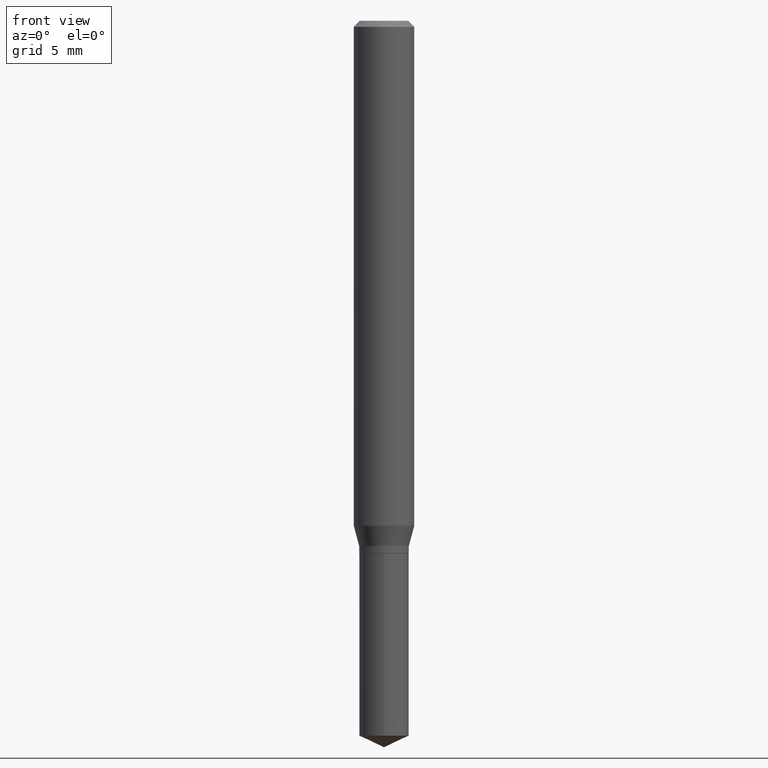
[diagram: clean part render]
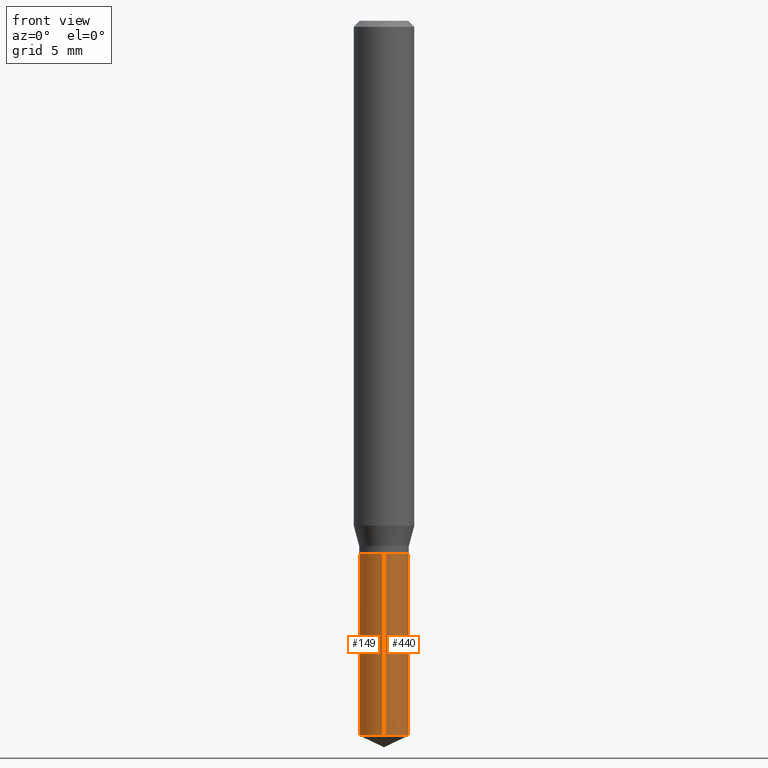
[diagram: same view with one multi-face feature highlighted, each face labeled with its STEP entity id]
A machine part, front view. The highlighted faces form ONE feature: a constant-radius fillet chain: 2 tangent blend faces with common blend radius 1.3005 mm. The faces share edges in the B-rep.
Their STEP definitions:
[1] entity #149 (Cylinder):
#8 = ORIENTED_EDGE ( 'NONE', *, *, #76, .T. ) ;
#33 = DIRECTION ( 'NONE',  ( -2.445399690415121530E-29, 3.491580316559632610E-15, 1.000000000000000000 ) ) ;
#56 = DIRECTION ( 'NONE',  ( -2.445399690415121810E-29, 3.491580316559632610E-15, 1.000000000000000000 ) ) ;
#61 = FACE_OUTER_BOUND ( 'NONE', #389, .T. ) ;
#69 = CARTESIAN_POINT ( 'NONE',  ( -3.575276890975008567E-16, -0.05120000000000517887, -1.476125047902464127 ) ) ;
#76 = EDGE_CURVE ( 'NONE', #122, #457, #467, .T. ) ;
#84 = VERTEX_POINT ( 'NONE', #277 ) ;
#102 = CARTESIAN_POINT ( 'NONE',  ( 3.609791762501709224E-29, -5.153900286548753594E-15, -1.476125047902464349 ) ) ;
#117 = AXIS2_PLACEMENT_3D ( 'NONE', #102, #354, #395 ) ;
#122 = VERTEX_POINT ( 'NONE', #69 ) ;
#125 = CARTESIAN_POINT ( 'NONE',  ( 2.690015686803650369E-29, -3.840629472727460101E-15, -1.100000000000000089 ) ) ;
#129 = CARTESIAN_POINT ( 'NONE',  ( 3.637978807092075016E-16, 0.05119999999999486073, -1.476125047902464571 ) ) ;
#147 = CIRCLE ( 'NONE', #117, 0.05120000000000000939 ) ;
#149 = ADVANCED_FACE ( 'NONE', ( #61 ), #197, .T. ) ;
#150 = ORIENTED_EDGE ( 'NONE', *, *, #288, .F. ) ;
#151 = EDGE_CURVE ( 'NONE', #84, #457, #340, .T. ) ;
#152 = ORIENTED_EDGE ( 'NONE', *, *, #151, .F. ) ;
#168 = DIRECTION ( 'NONE',  ( -6.982962677686265133E-15, -1.000000000000000000, 2.667820306312756424E-15 ) ) ;
#197 = CYLINDRICAL_SURFACE ( 'NONE', #223, 0.05120000000000000939 ) ;
#223 = AXIS2_PLACEMENT_3D ( 'NONE', #125, #317, #321 ) ;
#231 = VERTEX_POINT ( 'NONE', #129 ) ;
#277 = CARTESIAN_POINT ( 'NONE',  ( 3.637978807092074523E-16, 0.05119999999999616525, -1.100000000000000089 ) ) ;
#283 = ORIENTED_EDGE ( 'NONE', *, *, #291, .T. ) ;
#288 = EDGE_CURVE ( 'NONE', #231, #84, #485, .T. ) ;
#291 = EDGE_CURVE ( 'NONE', #231, #122, #147, .T. ) ;
#317 = DIRECTION ( 'NONE',  ( -2.445399690415121530E-29, 3.491580316559632610E-15, 1.000000000000000000 ) ) ;
#321 = DIRECTION ( 'NONE',  ( -6.982962677686265133E-15, -1.000000000000000000, 2.667820306312756424E-15 ) ) ;
#332 = VECTOR ( 'NONE', #434, 39.37007874015748143 ) ;
#340 = CIRCLE ( 'NONE', #438, 0.05120000000000000939 ) ;
#354 = DIRECTION ( 'NONE',  ( -2.445399690415121530E-29, 3.491580316559632610E-15, 1.000000000000000000 ) ) ;
#355 = CARTESIAN_POINT ( 'NONE',  ( -3.575276890975099779E-16, -0.05120000000000384660, -1.099999999999999867 ) ) ;
#389 = EDGE_LOOP ( 'NONE', ( #150, #283, #8, #152 ) ) ;
#390 = VECTOR ( 'NONE', #56, 39.37007874015748143 ) ;
#395 = DIRECTION ( 'NONE',  ( -6.982962677686265133E-15, -1.000000000000000000, 5.335640612625512847E-15 ) ) ;
#434 = DIRECTION ( 'NONE',  ( -2.445399690415121810E-29, 3.491580316559632610E-15, 1.000000000000000000 ) ) ;
#437 = CARTESIAN_POINT ( 'NONE',  ( 2.690015686803650369E-29, -3.840629472727460101E-15, -1.100000000000000089 ) ) ;
#438 = AXIS2_PLACEMENT_3D ( 'NONE', #437, #33, #168 ) ;
#444 = CARTESIAN_POINT ( 'NONE',  ( 3.637978807091981339E-16, 0.05119999999999616525, -1.100000000000000089 ) ) ;
#448 = CARTESIAN_POINT ( 'NONE',  ( -3.575276890975099779E-16, -0.05120000000000384660, -1.099999999999999867 ) ) ;
#457 = VERTEX_POINT ( 'NONE', #448 ) ;
#467 = LINE ( 'NONE', #355, #390 ) ;
#485 = LINE ( 'NONE', #444, #332 ) ;
[2] entity #440 (Cylinder):
#50 = FACE_OUTER_BOUND ( 'NONE', #274, .T. ) ;
#56 = DIRECTION ( 'NONE',  ( -2.445399690415121810E-29, 3.491580316559632610E-15, 1.000000000000000000 ) ) ;
#69 = CARTESIAN_POINT ( 'NONE',  ( -3.575276890975008567E-16, -0.05120000000000517887, -1.476125047902464127 ) ) ;
#76 = EDGE_CURVE ( 'NONE', #122, #457, #467, .T. ) ;
#80 = AXIS2_PLACEMENT_3D ( 'NONE', #399, #441, #139 ) ;
#82 = EDGE_CURVE ( 'NONE', #457, #84, #450, .T. ) ;
#84 = VERTEX_POINT ( 'NONE', #277 ) ;
#87 = ORIENTED_EDGE ( 'NONE', *, *, #288, .T. ) ;
#113 = DIRECTION ( 'NONE',  ( -2.445399690415121530E-29, 3.491580316559632610E-15, 1.000000000000000000 ) ) ;
#122 = VERTEX_POINT ( 'NONE', #69 ) ;
#129 = CARTESIAN_POINT ( 'NONE',  ( 3.637978807092075016E-16, 0.05119999999999486073, -1.476125047902464571 ) ) ;
#134 = ORIENTED_EDGE ( 'NONE', *, *, #82, .F. ) ;
#139 = DIRECTION ( 'NONE',  ( -6.982962677686265133E-15, -1.000000000000000000, 5.335640612625512847E-15 ) ) ;
#156 = EDGE_CURVE ( 'NONE', #122, #231, #251, .T. ) ;
#222 = AXIS2_PLACEMENT_3D ( 'NONE', #237, #347, #396 ) ;
#231 = VERTEX_POINT ( 'NONE', #129 ) ;
#237 = CARTESIAN_POINT ( 'NONE',  ( 2.690015686803650369E-29, -3.840629472727460101E-15, -1.100000000000000089 ) ) ;
#251 = CIRCLE ( 'NONE', #80, 0.05120000000000000939 ) ;
#256 = CYLINDRICAL_SURFACE ( 'NONE', #304, 0.05120000000000000939 ) ;
#264 = ORIENTED_EDGE ( 'NONE', *, *, #156, .T. ) ;
#274 = EDGE_LOOP ( 'NONE', ( #264, #87, #134, #350 ) ) ;
#277 = CARTESIAN_POINT ( 'NONE',  ( 3.637978807092074523E-16, 0.05119999999999616525, -1.100000000000000089 ) ) ;
#288 = EDGE_CURVE ( 'NONE', #231, #84, #485, .T. ) ;
#304 = AXIS2_PLACEMENT_3D ( 'NONE', #373, #113, #464 ) ;
#332 = VECTOR ( 'NONE', #434, 39.37007874015748143 ) ;
#347 = DIRECTION ( 'NONE',  ( -2.445399690415121530E-29, 3.491580316559632610E-15, 1.000000000000000000 ) ) ;
#350 = ORIENTED_EDGE ( 'NONE', *, *, #76, .F. ) ;
#355 = CARTESIAN_POINT ( 'NONE',  ( -3.575276890975099779E-16, -0.05120000000000384660, -1.099999999999999867 ) ) ;
#373 = CARTESIAN_POINT ( 'NONE',  ( 2.690015686803650369E-29, -3.840629472727460101E-15, -1.100000000000000089 ) ) ;
#390 = VECTOR ( 'NONE', #56, 39.37007874015748143 ) ;
#396 = DIRECTION ( 'NONE',  ( -6.982962677686265133E-15, -1.000000000000000000, 2.667820306312756424E-15 ) ) ;
#399 = CARTESIAN_POINT ( 'NONE',  ( 3.609791762501709224E-29, -5.153900286548753594E-15, -1.476125047902464349 ) ) ;
#434 = DIRECTION ( 'NONE',  ( -2.445399690415121810E-29, 3.491580316559632610E-15, 1.000000000000000000 ) ) ;
#440 = ADVANCED_FACE ( 'NONE', ( #50 ), #256, .T. ) ;
#441 = DIRECTION ( 'NONE',  ( -2.445399690415121530E-29, 3.491580316559632610E-15, 1.000000000000000000 ) ) ;
#444 = CARTESIAN_POINT ( 'NONE',  ( 3.637978807091981339E-16, 0.05119999999999616525, -1.100000000000000089 ) ) ;
#448 = CARTESIAN_POINT ( 'NONE',  ( -3.575276890975099779E-16, -0.05120000000000384660, -1.099999999999999867 ) ) ;
#450 = CIRCLE ( 'NONE', #222, 0.05120000000000000939 ) ;
#457 = VERTEX_POINT ( 'NONE', #448 ) ;
#464 = DIRECTION ( 'NONE',  ( -6.982962677686265133E-15, -1.000000000000000000, 2.667820306312756424E-15 ) ) ;
#467 = LINE ( 'NONE', #355, #390 ) ;
#485 = LINE ( 'NONE', #444, #332 ) ;